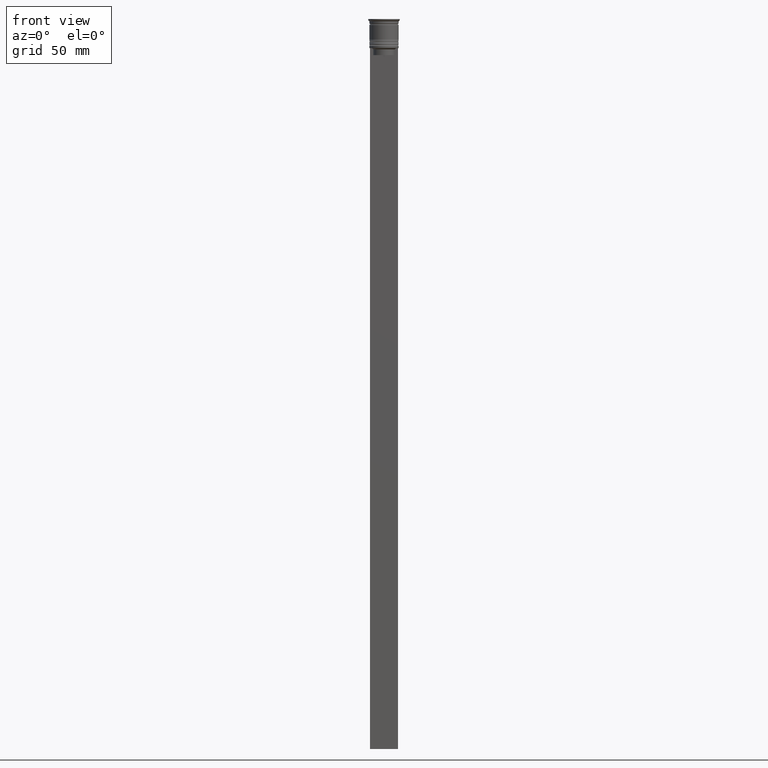
[diagram: clean part render]
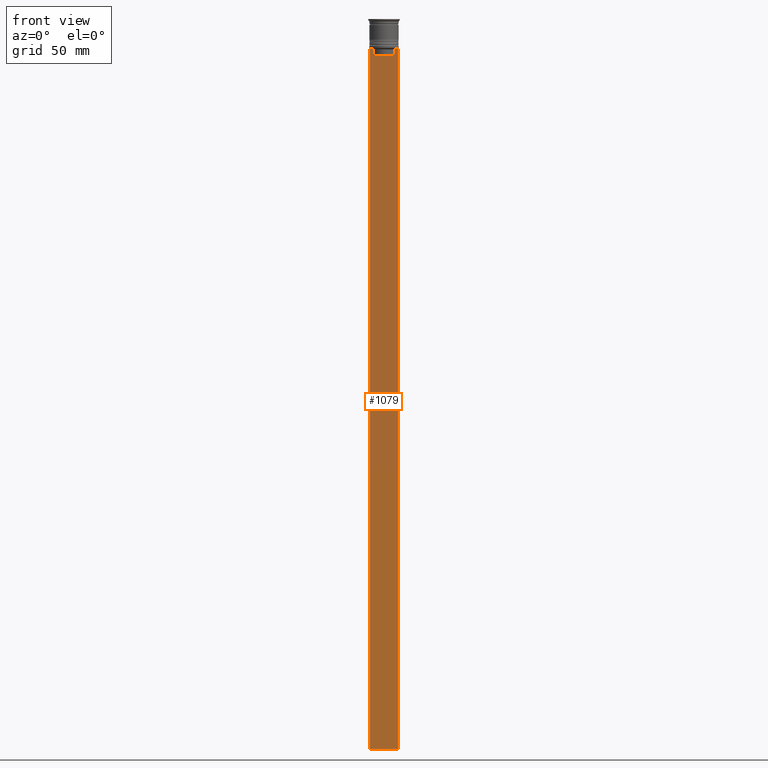
[diagram: same view with one face highlighted and labeled with its STEP entity id]
A machine part, front view. The second image highlights one B-rep face of the part: STEP entity #1079.
In plain terms, the highlighted planar face has unit normal (0, -1, -0).
Its self-contained STEP definition (entity closure, byte-faithful):
#7 = PLANE ( 'NONE',  #1260 ) ;
#19 = CARTESIAN_POINT ( 'NONE',  ( -4.790630915080664742, -0.5000000000000017764, -12.83338087185995491 ) ) ;
#56 = CARTESIAN_POINT ( 'NONE',  ( -4.958169823806760412, -0.5000000000000017764, -12.66670956677067927 ) ) ;
#64 = CARTESIAN_POINT ( 'NONE',  ( -5.999999999999983125, -0.5000000000000017764, -12.50000000000000000 ) ) ;
#68 = EDGE_CURVE ( 'NONE', #1622, #136, #1242, .T. ) ;
#118 = LINE ( 'NONE', #1101, #584 ) ;
#125 = LINE ( 'NONE', #1367, #1697 ) ;
#136 = VERTEX_POINT ( 'NONE', #545 ) ;
#140 = CARTESIAN_POINT ( 'NONE',  ( 6.000000000000016875, -0.5000000000000017764, -312.5000000000000000 ) ) ;
#225 = CARTESIAN_POINT ( 'NONE',  ( 6.000000000000016875, -0.5000000000000017764, -312.5000000000000000 ) ) ;
#247 = CARTESIAN_POINT ( 'NONE',  ( 4.623040125285526436, -0.5000000000000017764, 0.000000000000000000 ) ) ;
#255 = EDGE_CURVE ( 'NONE', #1607, #1643, #533, .T. ) ;
#261 = CARTESIAN_POINT ( 'NONE',  ( 6.000000000000016875, -0.5000000000000017764, -12.50000000000000000 ) ) ;
#262 = DIRECTION ( 'NONE',  ( 0.000000000000000000, 0.000000000000000000, -1.000000000000000000 ) ) ;
#292 = CARTESIAN_POINT ( 'NONE',  ( -5.999999999999983125, -0.5000000000000017764, -0.4584054212077061097 ) ) ;
#306 = EDGE_CURVE ( 'NONE', #886, #2003, #1979, .T. ) ;
#400 = ORIENTED_EDGE ( 'NONE', *, *, #1138, .F. ) ;
#507 = DIRECTION ( 'NONE',  ( 0.000000000000000000, 0.000000000000000000, -1.000000000000000000 ) ) ;
#533 = LINE ( 'NONE', #1875, #685 ) ;
#545 = CARTESIAN_POINT ( 'NONE',  ( -5.125670687822231564, -0.5000000000000017764, -12.50000000000000000 ) ) ;
#555 = EDGE_CURVE ( 'NONE', #1643, #886, #1531, .T. ) ;
#557 = DIRECTION ( 'NONE',  ( 0.000000000000000000, 0.000000000000000000, -1.000000000000000000 ) ) ;
#568 = CARTESIAN_POINT ( 'NONE',  ( -4.623040125285526436, -0.5000000000000017764, -13.00000000000000178 ) ) ;
#581 = CARTESIAN_POINT ( 'NONE',  ( -5.999999999999983125, -0.5000000000000017764, -312.5000000000000000 ) ) ;
#582 = VERTEX_POINT ( 'NONE', #261 ) ;
#584 = VECTOR ( 'NONE', #1579, 1000.000000000000000 ) ;
#592 = CARTESIAN_POINT ( 'NONE',  ( 4.623040125285526436, -0.5000000000000017764, -13.00000000000000178 ) ) ;
#654 = ORIENTED_EDGE ( 'NONE', *, *, #1107, .T. ) ;
#658 = CARTESIAN_POINT ( 'NONE',  ( -4.623040125285526436, -0.5000000000000017764, -13.00000000000000178 ) ) ;
#662 = DIRECTION ( 'NONE',  ( 0.000000000000000000, 0.000000000000000000, -1.000000000000000000 ) ) ;
#685 = VECTOR ( 'NONE', #1690, 1000.000000000000000 ) ;
#704 = LINE ( 'NONE', #225, #1634 ) ;
#713 = EDGE_CURVE ( 'NONE', #2315, #1510, #704, .T. ) ;
#750 = CARTESIAN_POINT ( 'NONE',  ( 6.000000000000016875, -0.5000000000000017764, -12.50000000000000000 ) ) ;
#790 = VECTOR ( 'NONE', #507, 1000.000000000000000 ) ;
#861 = ORIENTED_EDGE ( 'NONE', *, *, #1910, .F. ) ;
#886 = VERTEX_POINT ( 'NONE', #2253 ) ;
#1005 = VECTOR ( 'NONE', #662, 1000.000000000000000 ) ;
#1036 = EDGE_CURVE ( 'NONE', #2003, #582, #118, .T. ) ;
#1079 = ADVANCED_FACE ( 'NONE', ( #1633 ), #7, .T. ) ;
#1098 = CARTESIAN_POINT ( 'NONE',  ( 4.958169719475987947, -0.5000000000000017764, -12.66670967060858111 ) ) ;
#1101 = CARTESIAN_POINT ( 'NONE',  ( 6.000000000000016875, -0.5000000000000017764, -12.50000000000000000 ) ) ;
#1102 = ORIENTED_EDGE ( 'NONE', *, *, #555, .F. ) ;
#1107 = EDGE_CURVE ( 'NONE', #1622, #1510, #1929, .T. ) ;
#1138 = EDGE_CURVE ( 'NONE', #136, #1814, #1976, .T. ) ;
#1210 = CARTESIAN_POINT ( 'NONE',  ( 6.000000000000016875, -0.5000000000000017764, -0.4584054212077061097 ) ) ;
#1242 = LINE ( 'NONE', #750, #1825 ) ;
#1260 = AXIS2_PLACEMENT_3D ( 'NONE', #1210, #1828, #557 ) ;
#1367 = CARTESIAN_POINT ( 'NONE',  ( 6.000000000000016875, -0.5000000000000017764, -0.4584054212077061097 ) ) ;
#1402 = LINE ( 'NONE', #2130, #790 ) ;
#1477 = DIRECTION ( 'NONE',  ( 1.000000000000000000, 0.000000000000000000, 0.000000000000000000 ) ) ;
#1504 = CARTESIAN_POINT ( 'NONE',  ( -5.125670687822231564, -0.5000000000000017764, -12.50000000000000000 ) ) ;
#1510 = VERTEX_POINT ( 'NONE', #581 ) ;
#1531 = LINE ( 'NONE', #247, #2241 ) ;
#1579 = DIRECTION ( 'NONE',  ( 1.000000000000000000, 0.000000000000000000, 0.000000000000000000 ) ) ;
#1582 = ORIENTED_EDGE ( 'NONE', *, *, #1728, .F. ) ;
#1607 = VERTEX_POINT ( 'NONE', #2186 ) ;
#1622 = VERTEX_POINT ( 'NONE', #64 ) ;
#1633 = FACE_OUTER_BOUND ( 'NONE', #1761, .T. ) ;
#1634 = VECTOR ( 'NONE', #1662, 1000.000000000000000 ) ;
#1643 = VERTEX_POINT ( 'NONE', #1722 ) ;
#1645 = CARTESIAN_POINT ( 'NONE',  ( 5.125670687822231564, -0.5000000000000017764, -12.50000000000000000 ) ) ;
#1662 = DIRECTION ( 'NONE',  ( -1.000000000000000000, 0.000000000000000000, 0.000000000000000000 ) ) ;
#1664 = CARTESIAN_POINT ( 'NONE',  ( 4.790630799407577634, -0.5000000000000017764, -12.83338098686238915 ) ) ;
#1690 = DIRECTION ( 'NONE',  ( 1.000000000000000000, 0.000000000000000000, 0.000000000000000000 ) ) ;
#1697 = VECTOR ( 'NONE', #262, 1000.000000000000000 ) ;
#1722 = CARTESIAN_POINT ( 'NONE',  ( 4.623040125285526436, -0.5000000000000022204, -15.50000000000000000 ) ) ;
#1728 = EDGE_CURVE ( 'NONE', #582, #2315, #125, .T. ) ;
#1761 = EDGE_LOOP ( 'NONE', ( #400, #2301, #654, #2159, #1582, #2182, #2296, #1102, #1885, #861 ) ) ;
#1814 = VERTEX_POINT ( 'NONE', #658 ) ;
#1825 = VECTOR ( 'NONE', #1477, 1000.000000000000000 ) ;
#1828 = DIRECTION ( 'NONE',  ( 0.000000000000000000, -1.000000000000000000, -0.000000000000000000 ) ) ;
#1875 = CARTESIAN_POINT ( 'NONE',  ( 0.000000000000000000, -0.5000000000000022204, -15.50000000000000000 ) ) ;
#1885 = ORIENTED_EDGE ( 'NONE', *, *, #255, .F. ) ;
#1910 = EDGE_CURVE ( 'NONE', #1814, #1607, #1402, .T. ) ;
#1920 = DIRECTION ( 'NONE',  ( -0.000000000000000000, -0.000000000000000000, 1.000000000000000000 ) ) ;
#1929 = LINE ( 'NONE', #292, #1005 ) ;
#1976 = B_SPLINE_CURVE_WITH_KNOTS ( 'NONE', 3,
 ( #1504, #56, #19, #568 ),
 .UNSPECIFIED., .F., .F.,
 ( 4, 4 ),
 ( 0.008759809102772709091, 0.009468778395565353653 ),
 .UNSPECIFIED. ) ;
#1979 = B_SPLINE_CURVE_WITH_KNOTS ( 'NONE', 3,
 ( #592, #1664, #1098, #1645 ),
 .UNSPECIFIED., .F., .F.,
 ( 4, 4 ),
 ( 0.02203698174624552780, 0.02275222543365896383 ),
 .UNSPECIFIED. ) ;
#2003 = VERTEX_POINT ( 'NONE', #2173 ) ;
#2130 = CARTESIAN_POINT ( 'NONE',  ( -4.623040125285526436, -0.5000000000000017764, 0.000000000000000000 ) ) ;
#2159 = ORIENTED_EDGE ( 'NONE', *, *, #713, .F. ) ;
#2173 = CARTESIAN_POINT ( 'NONE',  ( 5.125670687822231564, -0.5000000000000017764, -12.50000000000000000 ) ) ;
#2182 = ORIENTED_EDGE ( 'NONE', *, *, #1036, .F. ) ;
#2186 = CARTESIAN_POINT ( 'NONE',  ( -4.623040125285526436, -0.5000000000000022204, -15.50000000000000000 ) ) ;
#2241 = VECTOR ( 'NONE', #1920, 1000.000000000000000 ) ;
#2253 = CARTESIAN_POINT ( 'NONE',  ( 4.623040125285526436, -0.5000000000000017764, -13.00000000000000178 ) ) ;
#2296 = ORIENTED_EDGE ( 'NONE', *, *, #306, .F. ) ;
#2301 = ORIENTED_EDGE ( 'NONE', *, *, #68, .F. ) ;
#2315 = VERTEX_POINT ( 'NONE', #140 ) ;